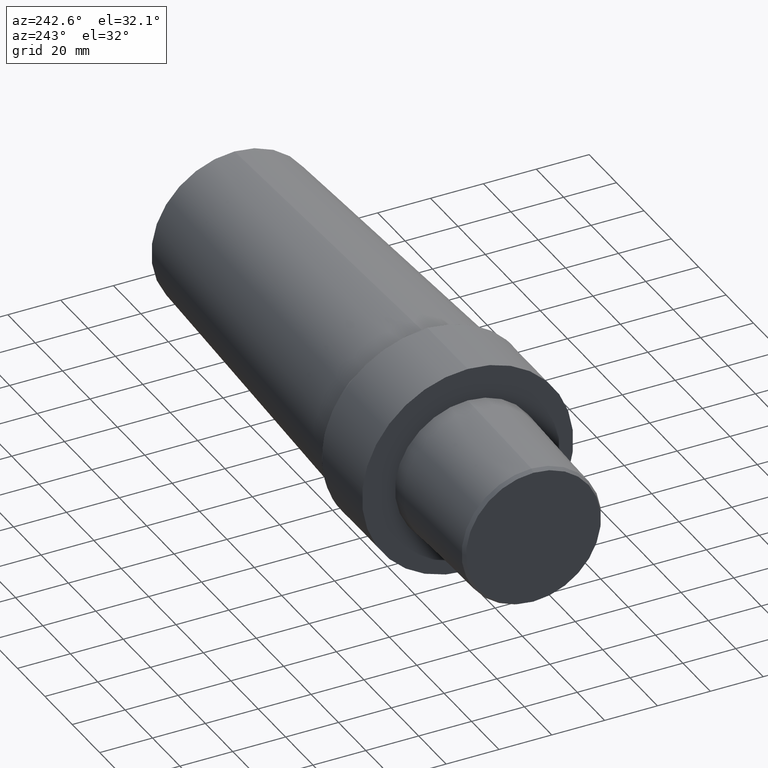
[diagram: clean part render]
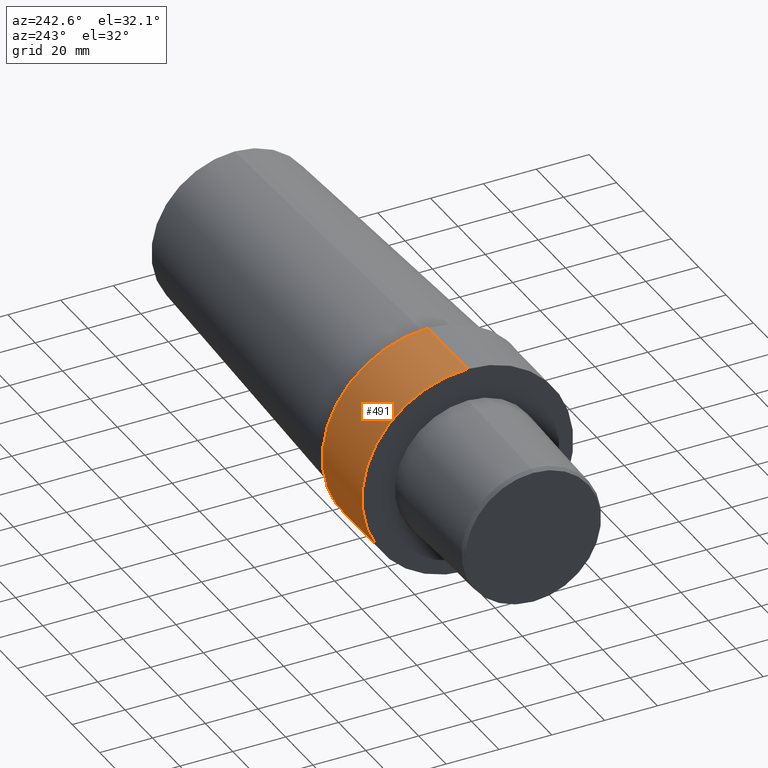
[diagram: same view with one face highlighted and labeled with its STEP entity id]
A machine part, auxiliary view. The second image highlights one B-rep face of the part: STEP entity #491.
In plain terms, the highlighted cylindrical surface (partial cylindrical patch) has radius 39.9925 mm, axis along (-1, 0, 0).
Its self-contained STEP definition (entity closure, byte-faithful):
#2 = AXIS2_PLACEMENT_3D ( 'NONE', #484, #34, #441 ) ;
#14 = ORIENTED_EDGE ( 'NONE', *, *, #150, .T. ) ;
#24 = DIRECTION ( 'NONE',  ( 0.000000000000000000, 0.000000000000000000, 1.000000000000000000 ) ) ;
#34 = DIRECTION ( 'NONE',  ( -1.000000000000000000, 0.000000000000000000, 0.000000000000000000 ) ) ;
#41 = LINE ( 'NONE', #327, #321 ) ;
#52 = ORIENTED_EDGE ( 'NONE', *, *, #369, .F. ) ;
#69 = AXIS2_PLACEMENT_3D ( 'NONE', #279, #485, #154 ) ;
#72 = CARTESIAN_POINT ( 'NONE',  ( 2.691416640612785863E-09, 4.897668707065322260E-15, -39.99249996386929951 ) ) ;
#109 = DIRECTION ( 'NONE',  ( -1.000000000000000000, 0.000000000000000000, 0.000000000000000000 ) ) ;
#138 = AXIS2_PLACEMENT_3D ( 'NONE', #513, #383, #24 ) ;
#150 = EDGE_CURVE ( 'NONE', #222, #177, #473, .T. ) ;
#154 = DIRECTION ( 'NONE',  ( 0.000000000000000000, 0.000000000000000000, 1.000000000000000000 ) ) ;
#156 = VERTEX_POINT ( 'NONE', #72 ) ;
#170 = CARTESIAN_POINT ( 'NONE',  ( 2.691416640612785863E-09, 0.000000000000000000, 39.99249996386929951 ) ) ;
#171 = VERTEX_POINT ( 'NONE', #170 ) ;
#177 = VERTEX_POINT ( 'NONE', #368 ) ;
#187 = ORIENTED_EDGE ( 'NONE', *, *, #509, .F. ) ;
#191 = CYLINDRICAL_SURFACE ( 'NONE', #69, 39.99249996386929951 ) ;
#222 = VERTEX_POINT ( 'NONE', #465 ) ;
#279 = CARTESIAN_POINT ( 'NONE',  ( -47.99999995507708661, 0.000000000000000000, 0.000000000000000000 ) ) ;
#286 = EDGE_CURVE ( 'NONE', #177, #156, #41, .T. ) ;
#321 = VECTOR ( 'NONE', #458, 1000.000000000000000 ) ;
#327 = CARTESIAN_POINT ( 'NONE',  ( -47.99999995507708661, 4.897668707065322260E-15, -39.99249996386929951 ) ) ;
#330 = VECTOR ( 'NONE', #109, 1000.000000000000000 ) ;
#368 = CARTESIAN_POINT ( 'NONE',  ( 28.99999997311141797, 4.897668707065322260E-15, -39.99249996386929951 ) ) ;
#369 = EDGE_CURVE ( 'NONE', #171, #156, #453, .T. ) ;
#376 = EDGE_LOOP ( 'NONE', ( #14, #508, #52, #187 ) ) ;
#383 = DIRECTION ( 'NONE',  ( -1.000000000000000000, 0.000000000000000000, 0.000000000000000000 ) ) ;
#441 = DIRECTION ( 'NONE',  ( 0.000000000000000000, 0.000000000000000000, 1.000000000000000000 ) ) ;
#453 = CIRCLE ( 'NONE', #138, 39.99249996386929951 ) ;
#458 = DIRECTION ( 'NONE',  ( -1.000000000000000000, 0.000000000000000000, 0.000000000000000000 ) ) ;
#465 = CARTESIAN_POINT ( 'NONE',  ( 28.99999997311141797, 0.000000000000000000, 39.99249996386929951 ) ) ;
#473 = CIRCLE ( 'NONE', #2, 39.99249996386929951 ) ;
#480 = CARTESIAN_POINT ( 'NONE',  ( -47.99999995507708661, 0.000000000000000000, 39.99249996386929951 ) ) ;
#483 = LINE ( 'NONE', #480, #330 ) ;
#484 = CARTESIAN_POINT ( 'NONE',  ( 28.99999997311141797, 0.000000000000000000, 0.000000000000000000 ) ) ;
#485 = DIRECTION ( 'NONE',  ( -1.000000000000000000, 0.000000000000000000, 0.000000000000000000 ) ) ;
#487 = FACE_OUTER_BOUND ( 'NONE', #376, .T. ) ;
#491 = ADVANCED_FACE ( 'NONE', ( #487 ), #191, .T. ) ;
#508 = ORIENTED_EDGE ( 'NONE', *, *, #286, .T. ) ;
#509 = EDGE_CURVE ( 'NONE', #222, #171, #483, .T. ) ;
#513 = CARTESIAN_POINT ( 'NONE',  ( 2.691416640612785863E-09, 0.000000000000000000, 0.000000000000000000 ) ) ;